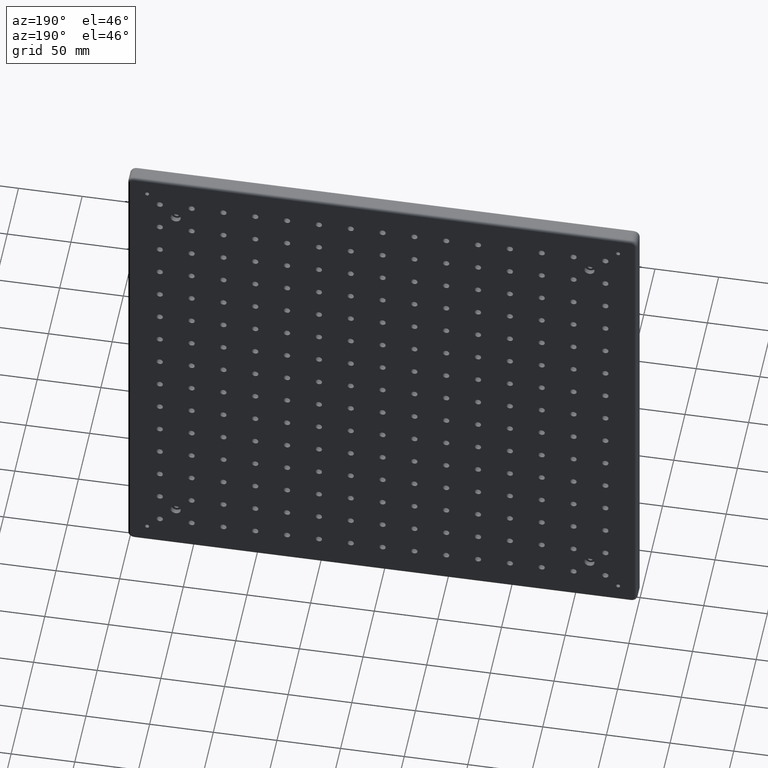
[diagram: clean part render]
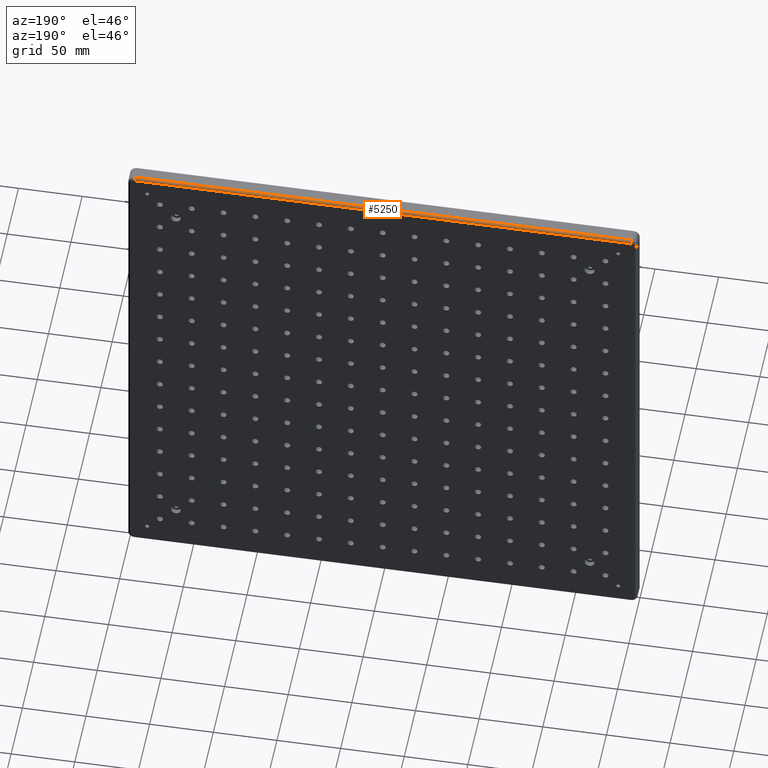
[diagram: same view with one face highlighted and labeled with its STEP entity id]
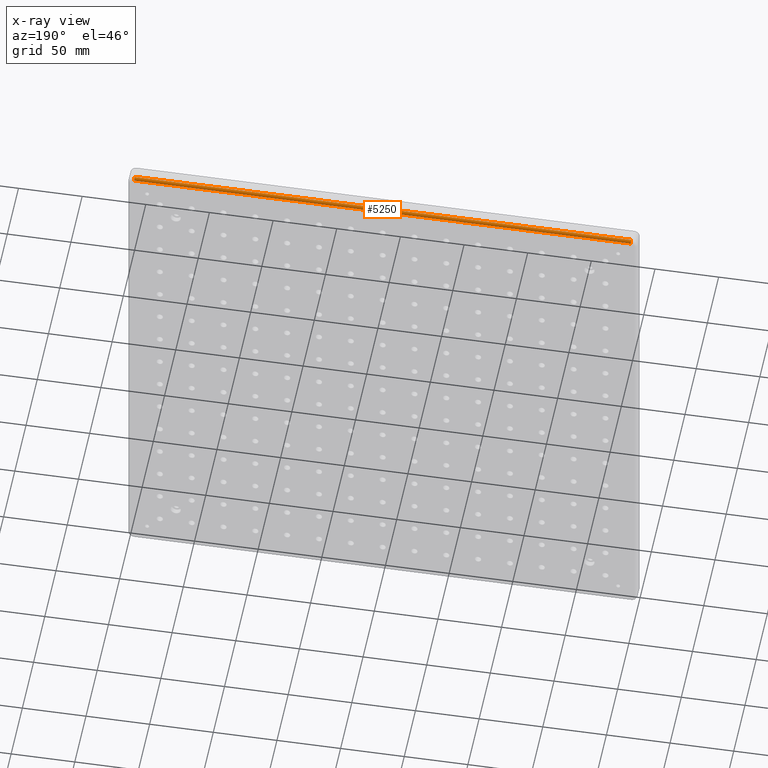
[diagram: x-ray of the same camera — body ghosted, the highlighted face saturated]
A machine part, auxiliary view. The second image highlights one B-rep face of the part: STEP entity #5250.
The next image is the same camera in x-ray: the body ghosted, the highlighted face saturated — about 0% of this face is hidden behind the body in this view.
In plain terms, the highlighted cylindrical surface (edge-blend (fillet) strip) has radius 2 mm, axis along (-1, 0, 0).
Its self-contained STEP definition (entity closure, byte-faithful):
#2028 = CARTESIAN_POINT ( 'NONE',  ( 195.0000000000000000, 11.00000000000000000, 197.9999999999999400 ) ) ;
#2576 = DIRECTION ( 'NONE',  ( -1.000000000000000000, 0.0000000000000000000, 0.0000000000000000000 ) ) ;
#2760 = EDGE_CURVE ( 'NONE', #4634, #17089, #14251, .T. ) ;
#3516 = CARTESIAN_POINT ( 'NONE',  ( -194.9999999999999400, 11.00000000000000000, 200.0000000000000000 ) ) ;
#4383 = AXIS2_PLACEMENT_3D ( 'NONE', #16573, #2576, #12402 ) ;
#4416 = ORIENTED_EDGE ( 'NONE', *, *, #2760, .F. ) ;
#4496 = CYLINDRICAL_SURFACE ( 'NONE', #17508, 2.000000000000001800 ) ;
#4588 = ORIENTED_EDGE ( 'NONE', *, *, #12609, .F. ) ;
#4634 = VERTEX_POINT ( 'NONE', #5922 ) ;
#4716 = DIRECTION ( 'NONE',  ( -1.000000000000000000, 0.0000000000000000000, 0.0000000000000000000 ) ) ;
#4728 = LINE ( 'NONE', #3516, #7419 ) ;
#4908 = DIRECTION ( 'NONE',  ( -1.000000000000000000, -0.0000000000000000000, 1.423362852083534100E-016 ) ) ;
#5153 = CARTESIAN_POINT ( 'NONE',  ( 195.0000000000000000, 11.00000000000000000, 199.9999999999999400 ) ) ;
#5250 = ADVANCED_FACE ( 'NONE', ( #13106 ), #4496, .T. ) ;
#5922 = CARTESIAN_POINT ( 'NONE',  ( -194.9999999999999400, 13.00000000000000000, 198.0000000000000000 ) ) ;
#6652 = CARTESIAN_POINT ( 'NONE',  ( 195.0000000000000000, 13.00000000000000000, 197.9999999999999400 ) ) ;
#6694 = VERTEX_POINT ( 'NONE', #5153 ) ;
#7419 = VECTOR ( 'NONE', #4908, 1000.000000000000000 ) ;
#7450 = DIRECTION ( 'NONE',  ( 0.0000000000000000000, 0.0000000000000000000, 1.000000000000000000 ) ) ;
#8866 = DIRECTION ( 'NONE',  ( 0.0000000000000000000, 0.0000000000000000000, 1.000000000000000000 ) ) ;
#9792 = EDGE_CURVE ( 'NONE', #11447, #4634, #16824, .T. ) ;
#11447 = VERTEX_POINT ( 'NONE', #14425 ) ;
#11634 = CARTESIAN_POINT ( 'NONE',  ( -194.9999999999999400, 11.00000000000000000, 198.0000000000000000 ) ) ;
#12402 = DIRECTION ( 'NONE',  ( 0.0000000000000000000, 0.0000000000000000000, 1.000000000000000000 ) ) ;
#12609 = EDGE_CURVE ( 'NONE', #6694, #11447, #4728, .T. ) ;
#13106 = FACE_OUTER_BOUND ( 'NONE', #17962, .T. ) ;
#13861 = CARTESIAN_POINT ( 'NONE',  ( 195.0000000000000000, 13.00000000000000000, 197.9999999999999400 ) ) ;
#14132 = ORIENTED_EDGE ( 'NONE', *, *, #9792, .F. ) ;
#14251 = LINE ( 'NONE', #6652, #16024 ) ;
#14425 = CARTESIAN_POINT ( 'NONE',  ( -194.9999999999999400, 11.00000000000000000, 200.0000000000000000 ) ) ;
#14774 = CIRCLE ( 'NONE', #17527, 2.000000000000001800 ) ;
#15023 = DIRECTION ( 'NONE',  ( 1.000000000000000000, 0.0000000000000000000, -1.423362852083534100E-016 ) ) ;
#15251 = ORIENTED_EDGE ( 'NONE', *, *, #15437, .T. ) ;
#15437 = EDGE_CURVE ( 'NONE', #6694, #17089, #14774, .T. ) ;
#16024 = VECTOR ( 'NONE', #15023, 1000.000000000000000 ) ;
#16573 = CARTESIAN_POINT ( 'NONE',  ( -194.9999999999999400, 11.00000000000000000, 198.0000000000000000 ) ) ;
#16824 = CIRCLE ( 'NONE', #4383, 2.000000000000001800 ) ;
#17089 = VERTEX_POINT ( 'NONE', #13861 ) ;
#17347 = DIRECTION ( 'NONE',  ( -1.000000000000000000, 0.0000000000000000000, 1.423362852083534100E-016 ) ) ;
#17508 = AXIS2_PLACEMENT_3D ( 'NONE', #11634, #17347, #8866 ) ;
#17527 = AXIS2_PLACEMENT_3D ( 'NONE', #2028, #4716, #7450 ) ;
#17962 = EDGE_LOOP ( 'NONE', ( #15251, #4416, #14132, #4588 ) ) ;